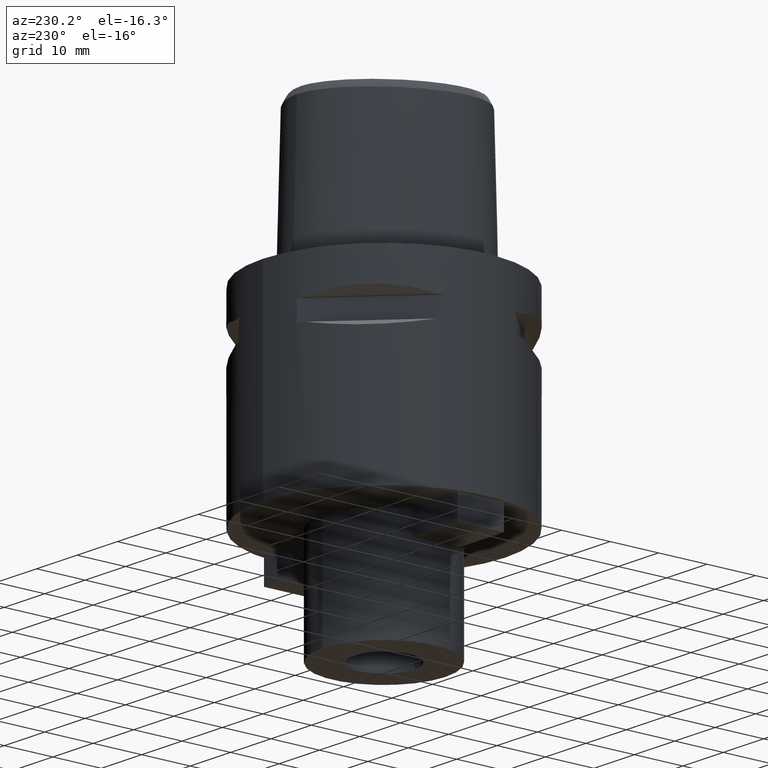
[diagram: clean part render]
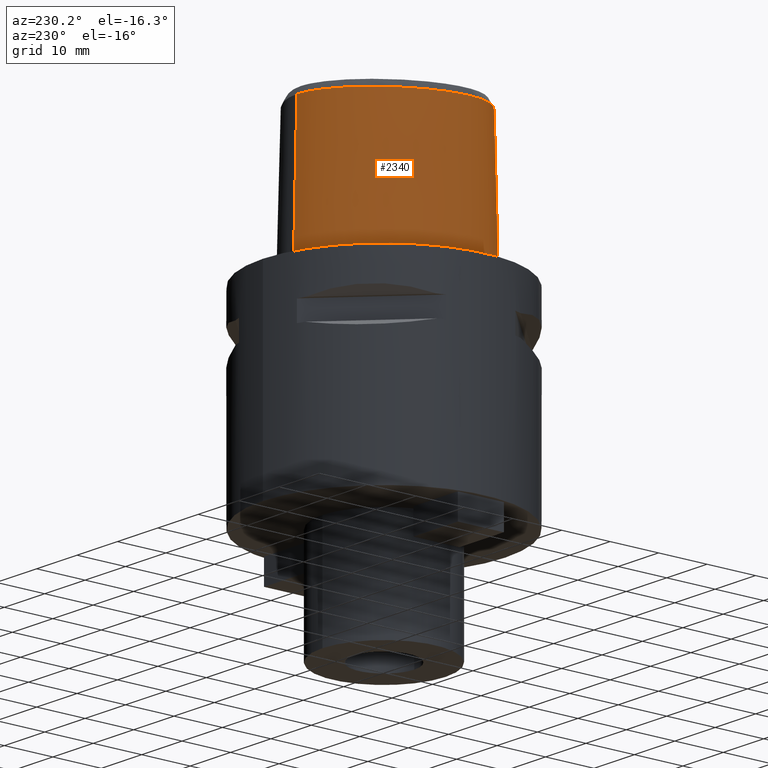
[diagram: same view with one face highlighted and labeled with its STEP entity id]
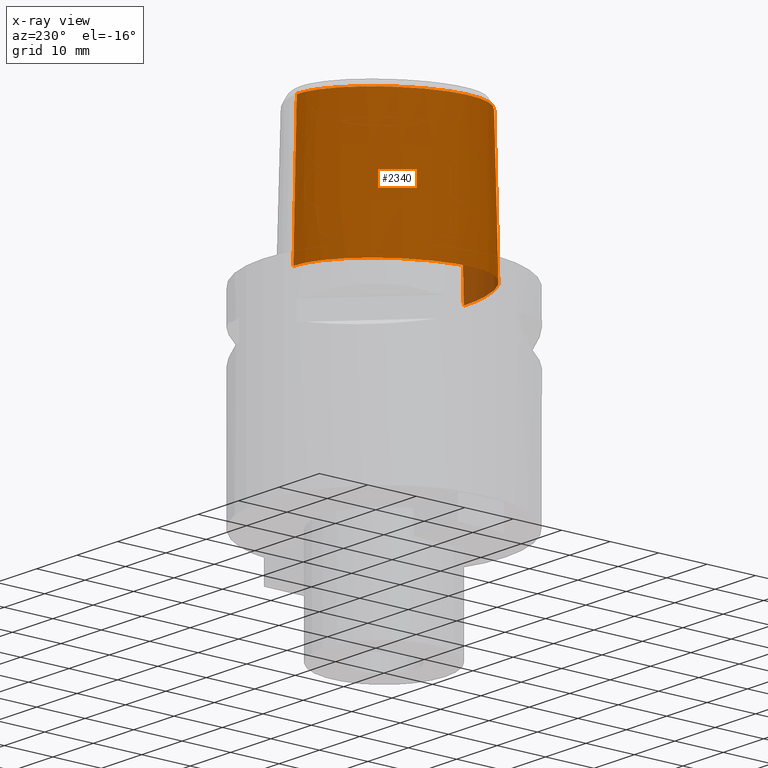
[diagram: x-ray of the same camera — body ghosted, the highlighted face saturated]
A machine part, auxiliary view. The second image highlights one B-rep face of the part: STEP entity #2340.
The next image is the same camera in x-ray: the body ghosted, the highlighted face saturated — about 3% of this face is hidden behind the body in this view.
In plain terms, the highlighted face is a freeform B-spline surface patch.
Its self-contained STEP definition (entity closure, byte-faithful):
#194=CARTESIAN_POINT('',(-3.168920966623E0,-1.555911077539E1,2.852071192347E1));
#195=CARTESIAN_POINT('',(-3.834802460624E0,-1.548149980056E1,2.852068259488E1));
#196=CARTESIAN_POINT('',(-5.098425956189E0,-1.528322129554E1,2.852072501408E1));
#197=CARTESIAN_POINT('',(-6.763182995587E0,-1.489564897571E1,2.852071506774E1));
#198=CARTESIAN_POINT('',(-8.199119874279E0,-1.445421074434E1,2.852072810493E1));
#199=CARTESIAN_POINT('',(-9.479985468784E0,-1.396290448038E1,2.852070886718E1));
#200=CARTESIAN_POINT('',(-1.065124091219E1,-1.341540490560E1,2.852072280462E1));
#201=CARTESIAN_POINT('',(-1.172848667658E1,-1.280901218796E1,2.852071529772E1));
#202=CARTESIAN_POINT('',(-1.271909405023E1,-1.213801322077E1,2.852072140095E1));
#203=CARTESIAN_POINT('',(-1.358663337046E1,-1.142906425604E1,2.852072076692E1));
#204=CARTESIAN_POINT('',(-1.432089152183E1,-1.070578211752E1,2.852072514129E1));
#205=CARTESIAN_POINT('',(-1.493679737650E1,-9.972043940927E0,2.852069036478E1));
#206=CARTESIAN_POINT('',(-1.544989155915E1,-9.225767726928E0,2.852073069360E1));
#207=CARTESIAN_POINT('',(-1.587932340565E1,-8.446243141603E0,2.852072616255E1));
#208=CARTESIAN_POINT('',(-1.624433460780E1,-7.597213457578E0,2.852070981507E1));
#209=CARTESIAN_POINT('',(-1.654527331392E1,-6.658898663135E0,2.852071596628E1));
#210=CARTESIAN_POINT('',(-1.677397756700E1,-5.620521684950E0,2.852072615388E1));
#211=CARTESIAN_POINT('',(-1.691819478479E1,-4.470824263012E0,2.852071639408E1));
#212=CARTESIAN_POINT('',(-1.696344648152E1,-3.257045715356E0,2.852071461131E1));
#213=CARTESIAN_POINT('',(-1.691062909386E1,-2.002801343658E0,2.852072363674E1));
#214=CARTESIAN_POINT('',(-1.675808310329E1,-6.888008413610E-1,
2.852071380688E1));
#215=CARTESIAN_POINT('',(-1.649855299857E1,6.977720721714E-1,2.852071998812E1));
#216=CARTESIAN_POINT('',(-1.610426973207E1,2.225424761353E0,2.852072063483E1));
#217=CARTESIAN_POINT('',(-1.552435244965E1,3.951979169115E0,2.852070441601E1));
#218=CARTESIAN_POINT('',(-1.474396806374E1,5.797556469969E0,2.852072799712E1));
#219=CARTESIAN_POINT('',(-1.380297306136E1,7.624260361627E0,2.852068650932E1));
#220=CARTESIAN_POINT('',(-1.272768153764E1,9.378428865776E0,2.852072747734E1));
#221=CARTESIAN_POINT('',(-1.154002983844E1,1.102437389658E1,2.852071909408E1));
#222=CARTESIAN_POINT('',(-1.032415640403E1,1.246392477114E1,2.852070864766E1));
#223=CARTESIAN_POINT('',(-9.178546848239E0,1.363544536689E1,2.852071992151E1));
#224=CARTESIAN_POINT('',(-8.100503338057E0,1.459779885486E1,2.852071927444E1));
#225=CARTESIAN_POINT('',(-7.037168641851E0,1.542369324304E1,2.852072717459E1));
#226=CARTESIAN_POINT('',(-5.970741987586E0,1.613437390494E1,2.852071577844E1));
#227=CARTESIAN_POINT('',(-4.895546031542E0,1.673553791691E1,2.852072334992E1));
#228=CARTESIAN_POINT('',(-3.827360564547E0,1.721887992541E1,2.852071733764E1));
#229=CARTESIAN_POINT('',(-2.794448666689E0,1.757718790997E1,2.852071374997E1));
#230=CARTESIAN_POINT('',(-1.819188312334E0,1.781665288435E1,2.852077149501E1));
#231=CARTESIAN_POINT('',(-8.849236946526E-1,1.795330503534E1,2.852059165093E1));
#232=CARTESIAN_POINT('',(-2.965007077566E-1,1.798202997910E1,2.852071728568E1));
#233=CARTESIAN_POINT('',(-2.785048470627E-11,1.798202997910E1,
2.852071728569E1));
#245=CARTESIAN_POINT('',(-3.168920966623E0,-1.555911077539E1,2.852071192347E1));
#246=CARTESIAN_POINT('',(-3.176474039100E0,-1.556891666509E1,2.809611645937E1));
#247=CARTESIAN_POINT('',(-3.191280249308E0,-1.558832444513E1,2.724696144168E1));
#248=CARTESIAN_POINT('',(-3.213330813519E0,-1.561778410051E1,2.597339362925E1));
#249=CARTESIAN_POINT('',(-3.227943724850E0,-1.563768160294E1,2.512445079602E1));
#250=CARTESIAN_POINT('',(-3.235096612069E0,-1.564751802487E1,2.47E1));
#255=DIRECTION('',(-2.653059685059E-8,-2.499217453618E-2,-9.996876468237E-1));
#256=VECTOR('',#255,7.652390309446E0);
#257=CARTESIAN_POINT('',(2.030224829794E-7,-1.583752876601E1,2.470000006103E1));
#258=LINE('',#257,#256);
#262=CARTESIAN_POINT('',(0.E0,-1.602877864024E1,1.705E1));
#263=CARTESIAN_POINT('',(-2.659945477311E-1,-1.602877864024E1,1.705E1));
#264=CARTESIAN_POINT('',(-7.981539054071E-1,-1.602276557434E1,
1.697998778210E1));
#265=CARTESIAN_POINT('',(-1.542337742670E0,-1.599859727103E1,1.667189267474E1));
#266=CARTESIAN_POINT('',(-2.182298091953E0,-1.596711682406E1,1.618082016301E1));
#267=CARTESIAN_POINT('',(-2.673120543222E0,-1.593921850387E1,1.554028257757E1));
#268=CARTESIAN_POINT('',(-2.980687782776E0,-1.592573160843E1,1.479556193386E1));
#269=CARTESIAN_POINT('',(-3.084822898489E0,-1.593407648873E1,1.399796112571E1));
#270=CARTESIAN_POINT('',(-2.980017946408E0,-1.596586743653E1,1.320269542640E1));
#271=CARTESIAN_POINT('',(-2.672701220910E0,-1.601665099738E1,1.245917485553E1));
#272=CARTESIAN_POINT('',(-2.182455128889E0,-1.607648409626E1,1.181929354118E1));
#273=CARTESIAN_POINT('',(-1.541258646605E0,-1.613247596370E1,1.132732424473E1));
#274=CARTESIAN_POINT('',(-7.963106898850E-1,-1.617186122197E1,
1.101956686934E1));
#275=CARTESIAN_POINT('',(-2.651805195329E-1,-1.618126839359E1,1.095E1));
#276=CARTESIAN_POINT('',(-3.366053273828E-12,-1.618126839359E1,1.095E1));
#281=DIRECTION('',(-2.164302263116E-12,-2.499051295342E-2,-9.996876883619E-1));
#282=VECTOR('',#281,1.095342088082E1);
#283=CARTESIAN_POINT('',(-3.366053273828E-12,-1.618126839359E1,1.095E1));
#284=LINE('',#283,#282);
#348=CARTESIAN_POINT('',(9.828580115163E-11,1.869499999997E1,
2.298531735316E-13));
#349=CARTESIAN_POINT('',(-3.116838618641E-1,1.869499999997E1,
2.298531735316E-13));
#350=CARTESIAN_POINT('',(-9.476237278125E-1,1.866452055117E1,
-1.066752290805E-13));
#351=CARTESIAN_POINT('',(-1.935937883187E0,1.852100004859E1,
2.858354148453E-14));
#352=CARTESIAN_POINT('',(-2.968629831683E0,1.826986324247E1,0.E0));
#353=CARTESIAN_POINT('',(-4.050261093132E0,1.789825009747E1,0.E0));
#354=CARTESIAN_POINT('',(-5.185110682673E0,1.739030944738E1,0.E0));
#355=CARTESIAN_POINT('',(-6.374204529647E0,1.672795976834E1,0.E0));
#356=CARTESIAN_POINT('',(-7.613915830728E0,1.589256226581E1,0.E0));
#357=CARTESIAN_POINT('',(-8.894283058495E0,1.486729856810E1,0.E0));
#358=CARTESIAN_POINT('',(-1.019609080075E1,1.364208926888E1,0.E0));
#359=CARTESIAN_POINT('',(-1.149120737776E1,1.221752058175E1,0.E0));
#360=CARTESIAN_POINT('',(-1.274211537474E1,1.061080517787E1,0.E0));
#361=CARTESIAN_POINT('',(-1.390590529124E1,8.858677028843E0,0.E0));
#362=CARTESIAN_POINT('',(-1.494345513723E1,7.010577339786E0,0.E0));
#363=CARTESIAN_POINT('',(-1.582654738959E1,5.118799510639E0,0.E0));
#364=CARTESIAN_POINT('',(-1.653483676950E1,3.243969166705E0,0.E0));
#365=CARTESIAN_POINT('',(-1.706324909824E1,1.436857582747E0,0.E0));
#366=CARTESIAN_POINT('',(-1.741926904581E1,-2.668113493154E-1,0.E0));
#367=CARTESIAN_POINT('',(-1.761845088837E1,-1.846907006190E0,0.E0));
#368=CARTESIAN_POINT('',(-1.767988894655E1,-3.295846907527E0,0.E0));
#369=CARTESIAN_POINT('',(-1.762277704993E1,-4.616114521331E0,0.E0));
#370=CARTESIAN_POINT('',(-1.746434613683E1,-5.814649364015E0,0.E0));
#371=CARTESIAN_POINT('',(-1.721845882676E1,-6.903313230626E0,0.E0));
#372=CARTESIAN_POINT('',(-1.689589236557E1,-7.892194644496E0,0.E0));
#373=CARTESIAN_POINT('',(-1.650470801819E1,-8.792166694593E0,0.E0));
#374=CARTESIAN_POINT('',(-1.604223049551E1,-9.625125717610E0,0.E0));
#375=CARTESIAN_POINT('',(-1.549220489588E1,-1.042082857497E1,0.E0));
#376=CARTESIAN_POINT('',(-1.483689873707E1,-1.119906976090E1,0.E0));
#377=CARTESIAN_POINT('',(-1.406041334473E1,-1.196273238812E1,0.E0));
#378=CARTESIAN_POINT('',(-1.315074293952E1,-1.270662661415E1,0.E0));
#379=CARTESIAN_POINT('',(-1.209064300874E1,-1.342637078568E1,0.E0));
#380=CARTESIAN_POINT('',(-1.086441061025E1,-1.411219571951E1,0.E0));
#381=CARTESIAN_POINT('',(-9.458902560865E0,-1.475009149371E1,0.E0));
#382=CARTESIAN_POINT('',(-7.867598179330E0,-1.532133665618E1,0.E0));
#383=CARTESIAN_POINT('',(-6.095187664965E0,-1.580314672466E1,0.E0));
#384=CARTESIAN_POINT('',(-4.164011735992E0,-1.617109882954E1,
2.874001232828E-14));
#385=CARTESIAN_POINT('',(-2.108829770643E0,-1.640239423805E1,
-1.072591862193E-13));
#386=CARTESIAN_POINT('',(-7.106539797939E-1,-1.645499999999E1,
2.311114262928E-13));
#387=CARTESIAN_POINT('',(-2.707256687504E-11,-1.645499999999E1,
2.311114262928E-13));
#915=DIRECTION('',(4.421238455017E-12,2.499051285762E-2,-9.996876883643E-1));
#916=VECTOR('',#915,2.852962742029E1);
#917=CARTESIAN_POINT('',(-2.785048470627E-11,1.798202997910E1,
2.852071728569E1));
#918=LINE('',#917,#916);
#932=CARTESIAN_POINT('',(2.030224829794E-7,-1.583752876601E1,2.470000006103E1));
#933=CARTESIAN_POINT('',(-3.604657533404E-1,-1.583752876587E1,
2.470000006103E1));
#934=CARTESIAN_POINT('',(-1.080736565087E0,-1.582371258234E1,2.469999997152E1));
#935=CARTESIAN_POINT('',(-2.160152508818E0,-1.576019554973E1,2.470000000814E1));
#936=CARTESIAN_POINT('',(-2.877122210813E0,-1.568999562894E1,2.47E1));
#937=CARTESIAN_POINT('',(-3.235096612069E0,-1.564751802487E1,2.47E1));
#1553=CARTESIAN_POINT('',(-3.235121119989E0,-1.564755630482E1,2.47E1));
#1554=VERTEX_POINT('',#1553);
#1555=VERTEX_POINT('',#245);
#1556=CARTESIAN_POINT('',(-2.785048470627E-11,1.798202997910E1,
2.852071728569E1));
#1557=VERTEX_POINT('',#1556);
#1558=VERTEX_POINT('',#348);
#1559=VERTEX_POINT('',#387);
#1560=VERTEX_POINT('',#932);
#1561=CARTESIAN_POINT('',(0.E0,-1.602877864024E1,1.705E1));
#1562=VERTEX_POINT('',#1561);
#1563=VERTEX_POINT('',#276);
#2227=CARTESIAN_POINT('',(5.756361492360E-1,1.869183960126E1,
-5.704147440527E-1));
#2228=CARTESIAN_POINT('',(5.606135736536E-1,1.844514039508E1,9.316774152861E0));
#2229=CARTESIAN_POINT('',(5.455909980712E-1,1.819844118889E1,1.920396304977E1));
#2230=CARTESIAN_POINT('',(5.305684224888E-1,1.795174198271E1,2.909115194669E1));
#2231=CARTESIAN_POINT('',(3.838142946961E-1,1.870350312631E1,
-5.704147440527E-1));
#2232=CARTESIAN_POINT('',(3.738602549073E-1,1.845648974247E1,9.316774152861E0));
#2233=CARTESIAN_POINT('',(3.639062151184E-1,1.820947635862E1,1.920396304977E1));
#2234=CARTESIAN_POINT('',(3.539521753296E-1,1.796246297477E1,2.909115194669E1));
#2235=CARTESIAN_POINT('',(-4.893119564130E-1,1.872969240899E1,
-5.704147440527E-1));
#2236=CARTESIAN_POINT('',(-4.764647998590E-1,1.848199779945E1,
9.316774152861E0));
#2237=CARTESIAN_POINT('',(-4.636176433049E-1,1.823430318991E1,
1.920396304977E1));
#2238=CARTESIAN_POINT('',(-4.507704867509E-1,1.798660858037E1,
2.909115194669E1));
#2239=CARTESIAN_POINT('',(-2.043508293299E0,1.856419797101E1,
-5.704147440527E-1));
#2240=CARTESIAN_POINT('',(-1.992618742337E0,1.832080814009E1,9.316774152861E0));
#2241=CARTESIAN_POINT('',(-1.941729191376E0,1.807741830917E1,1.920396304977E1));
#2242=CARTESIAN_POINT('',(-1.890839640414E0,1.783402847824E1,2.909115194669E1));
#2243=CARTESIAN_POINT('',(-4.735056265137E0,1.774784408039E1,
-5.704147440527E-1));
#2244=CARTESIAN_POINT('',(-4.628819254237E0,1.752182793697E1,9.316774152861E0));
#2245=CARTESIAN_POINT('',(-4.522582243338E0,1.729581179356E1,1.920396304977E1));
#2246=CARTESIAN_POINT('',(-4.416345232438E0,1.706979565014E1,2.909115194669E1));
#2247=CARTESIAN_POINT('',(-7.976721802350E0,1.584201698702E1,
-5.704147440527E-1));
#2248=CARTESIAN_POINT('',(-7.822764741513E0,1.564591004524E1,9.316774152861E0));
#2249=CARTESIAN_POINT('',(-7.668807680676E0,1.544980310346E1,1.920396304977E1));
#2250=CARTESIAN_POINT('',(-7.514850619839E0,1.525369616167E1,2.909115194669E1));
#2251=CARTESIAN_POINT('',(-1.147659488594E1,1.246143684925E1,
-5.704147440527E-1));
#2252=CARTESIAN_POINT('',(-1.128662492027E1,1.230111479561E1,9.316774152861E0));
#2253=CARTESIAN_POINT('',(-1.109665495460E1,1.214079274197E1,1.920396304977E1));
#2254=CARTESIAN_POINT('',(-1.090668498893E1,1.198047068833E1,2.909115194669E1));
#2255=CARTESIAN_POINT('',(-1.439249255323E1,8.309508949289E0,
-5.704147440527E-1));
#2256=CARTESIAN_POINT('',(-1.417736237687E1,8.185312161597E0,9.316774152861E0));
#2257=CARTESIAN_POINT('',(-1.396223220052E1,8.061115373904E0,1.920396304977E1));
#2258=CARTESIAN_POINT('',(-1.374710202416E1,7.936918586211E0,2.909115194669E1));
#2259=CARTESIAN_POINT('',(-1.653021708683E1,3.708305584883E0,
-5.704147440527E-1));
#2260=CARTESIAN_POINT('',(-1.629641054366E1,3.623925446918E0,9.316774152861E0));
#2261=CARTESIAN_POINT('',(-1.606260400049E1,3.539545308954E0,1.920396304977E1));
#2262=CARTESIAN_POINT('',(-1.582879745731E1,3.455165170990E0,2.909115194669E1));
#2263=CARTESIAN_POINT('',(-1.751166498659E1,-2.260900526659E-1,
-5.704147440527E-1));
#2264=CARTESIAN_POINT('',(-1.726695535231E1,-2.694874731237E-1,
9.316774152861E0));
#2265=CARTESIAN_POINT('',(-1.702224571802E1,-3.128848935814E-1,
1.920396304977E1));
#2266=CARTESIAN_POINT('',(-1.677753608374E1,-3.562823140392E-1,
2.909115194669E1));
#2267=CARTESIAN_POINT('',(-1.772574106129E1,-3.269125760287E0,
-5.704147440527E-1));
#2268=CARTESIAN_POINT('',(-1.747781016288E1,-3.270737581987E0,
9.316774152861E0));
#2269=CARTESIAN_POINT('',(-1.722987926447E1,-3.272349403687E0,
1.920396304977E1));
#2270=CARTESIAN_POINT('',(-1.698194836605E1,-3.273961225387E0,
2.909115194669E1));
#2271=CARTESIAN_POINT('',(-1.757791639833E1,-5.458025466072E0,
-5.704147440527E-1));
#2272=CARTESIAN_POINT('',(-1.733218226900E1,-5.422849679150E0,
9.316774152861E0));
#2273=CARTESIAN_POINT('',(-1.708644813966E1,-5.387673892228E0,
1.920396304977E1));
#2274=CARTESIAN_POINT('',(-1.684071401033E1,-5.352498105306E0,
2.909115194669E1));
#2275=CARTESIAN_POINT('',(-1.717866843041E1,-7.169980044939E0,
-5.704147440527E-1));
#2276=CARTESIAN_POINT('',(-1.694089127862E1,-7.099401453497E0,
9.316774152861E0));
#2277=CARTESIAN_POINT('',(-1.670311412682E1,-7.028822862055E0,
1.920396304977E1));
#2278=CARTESIAN_POINT('',(-1.646533697503E1,-6.958244270614E0,
2.909115194669E1));
#2279=CARTESIAN_POINT('',(-1.668217932229E1,-8.451606617198E0,
-5.704147440527E-1));
#2280=CARTESIAN_POINT('',(-1.645596370678E1,-8.350972127447E0,
9.316774152861E0));
#2281=CARTESIAN_POINT('',(-1.622974809127E1,-8.250337637696E0,
1.920396304977E1));
#2282=CARTESIAN_POINT('',(-1.600353247576E1,-8.149703147945E0,
2.909115194669E1));
#2283=CARTESIAN_POINT('',(-1.621839714893E1,-9.363695959775E0,
-5.704147440527E-1));
#2284=CARTESIAN_POINT('',(-1.600394170793E1,-9.239880052826E0,
9.316774152861E0));
#2285=CARTESIAN_POINT('',(-1.578948626693E1,-9.116064145877E0,
1.920396304977E1));
#2286=CARTESIAN_POINT('',(-1.557503082594E1,-8.992248238928E0,
2.909115194669E1));
#2287=CARTESIAN_POINT('',(-1.566039569456E1,-1.022138777499E1,
-5.704147440527E-1));
#2288=CARTESIAN_POINT('',(-1.546013585980E1,-1.007579655016E1,
9.316774152861E0));
#2289=CARTESIAN_POINT('',(-1.525987602503E1,-9.930205325332E0,
1.920396304977E1));
#2290=CARTESIAN_POINT('',(-1.505961619026E1,-9.784614100504E0,
2.909115194669E1));
#2291=CARTESIAN_POINT('',(-1.479871907799E1,-1.129217324143E1,
-5.704147440527E-1));
#2292=CARTESIAN_POINT('',(-1.461870766210E1,-1.112154148364E1,
9.316774152861E0));
#2293=CARTESIAN_POINT('',(-1.443869624621E1,-1.095090972585E1,
1.920396304977E1));
#2294=CARTESIAN_POINT('',(-1.425868483032E1,-1.078027796806E1,
2.909115194669E1));
#2295=CARTESIAN_POINT('',(-1.351574691343E1,-1.249390941373E1,
-5.704147440527E-1));
#2296=CARTESIAN_POINT('',(-1.336241661724E1,-1.229868530490E1,
9.316774152861E0));
#2297=CARTESIAN_POINT('',(-1.320908632106E1,-1.210346119606E1,
1.920396304977E1));
#2298=CARTESIAN_POINT('',(-1.305575602488E1,-1.190823708722E1,
2.909115194669E1));
#2299=CARTESIAN_POINT('',(-1.169401646480E1,-1.371637917906E1,
-5.704147440527E-1));
#2300=CARTESIAN_POINT('',(-1.157144728282E1,-1.350085882547E1,
9.316774152861E0));
#2301=CARTESIAN_POINT('',(-1.144887810085E1,-1.328533847189E1,
1.920396304977E1));
#2302=CARTESIAN_POINT('',(-1.132630891888E1,-1.306981811831E1,
2.909115194669E1));
#2303=CARTESIAN_POINT('',(-8.951632341334E0,-1.505250171881E1,
-5.704147440527E-1));
#2304=CARTESIAN_POINT('',(-8.866858732090E0,-1.481887817618E1,
9.316774152861E0));
#2305=CARTESIAN_POINT('',(-8.782085122847E0,-1.458525463356E1,
1.920396304977E1));
#2306=CARTESIAN_POINT('',(-8.697311513603E0,-1.435163109094E1,
2.909115194669E1));
#2307=CARTESIAN_POINT('',(-5.053620744068E0,-1.616974068598E1,
-5.704147440527E-1));
#2308=CARTESIAN_POINT('',(-5.009809418143E0,-1.592506879562E1,
9.316774152861E0));
#2309=CARTESIAN_POINT('',(-4.965998092217E0,-1.568039690525E1,
1.920396304977E1));
#2310=CARTESIAN_POINT('',(-4.922186766292E0,-1.543572501489E1,
2.909115194669E1));
#2311=CARTESIAN_POINT('',(-1.321318947119E0,-1.650155084733E1,
-5.704147440527E-1));
#2312=CARTESIAN_POINT('',(-1.309813751055E0,-1.625411915168E1,
9.316774152861E0));
#2313=CARTESIAN_POINT('',(-1.298308554992E0,-1.600668745603E1,
1.920396304977E1));
#2314=CARTESIAN_POINT('',(-1.286803358928E0,-1.575925576039E1,
2.909115194669E1));
#2315=CARTESIAN_POINT('',(7.264497205771E-1,-1.646229666112E1,
-5.704147440527E-1));
#2316=CARTESIAN_POINT('',(7.201291701075E-1,-1.621519145912E1,
9.316774152861E0));
#2317=CARTESIAN_POINT('',(7.138086196379E-1,-1.596808625712E1,
1.920396304977E1));
#2318=CARTESIAN_POINT('',(7.074880691683E-1,-1.572098105512E1,
2.909115194669E1));
#2319=CARTESIAN_POINT('',(1.089046662319E0,-1.644835922032E1,
-5.704147440527E-1));
#2320=CARTESIAN_POINT('',(1.079551360405E0,-1.620136642156E1,9.316774152861E0));
#2321=CARTESIAN_POINT('',(1.070056058492E0,-1.595437362280E1,1.920396304977E1));
#2322=CARTESIAN_POINT('',(1.060560756579E0,-1.570738082404E1,2.909115194669E1));
#2323=B_SPLINE_SURFACE_WITH_KNOTS('',3,3,((#2227,#2228,#2229,#2230),(#2231,
#2232,#2233,#2234),(#2235,#2236,#2237,#2238),(#2239,#2240,#2241,#2242),(#2243,
#2244,#2245,#2246),(#2247,#2248,#2249,#2250),(#2251,#2252,#2253,#2254),(#2255,
#2256,#2257,#2258),(#2259,#2260,#2261,#2262),(#2263,#2264,#2265,#2266),(#2267,
#2268,#2269,#2270),(#2271,#2272,#2273,#2274),(#2275,#2276,#2277,#2278),(#2279,
#2280,#2281,#2282),(#2283,#2284,#2285,#2286),(#2287,#2288,#2289,#2290),(#2291,
#2292,#2293,#2294),(#2295,#2296,#2297,#2298),(#2299,#2300,#2301,#2302),(#2303,
#2304,#2305,#2306),(#2307,#2308,#2309,#2310),(#2311,#2312,#2313,#2314),(#2315,
#2316,#2317,#2318),(#2319,#2320,#2321,#2322)),.UNSPECIFIED.,.F.,.F.,.F.,(4,1,1,
1,1,1,1,1,1,1,1,1,1,1,1,1,1,1,1,1,1,4),(4,4),(-1.173812893916E-2,0.E0,
4.166666666860E-2,8.333333333518E-2,1.666666666684E-1,2.500000000015E-1,
3.333333333347E-1,4.166666666679E-1,5.000000000010E-1,5.416666666677E-1,
5.833333333342E-1,6.250000000008E-1,6.458333333341E-1,6.666666666674E-1,
6.875000000007E-1,7.083333333339E-1,7.500000000006E-1,7.916666666672E-1,
8.333333333337E-1,9.166666666669E-1,1.E0,1.017968513185E0),(-4.153185781397E-11,
1.000000002118E0),.UNSPECIFIED.);
#2325=ORIENTED_EDGE('',*,*,#2324,.F.);
#2327=ORIENTED_EDGE('',*,*,#2326,.F.);
#2328=ORIENTED_EDGE('',*,*,#2220,.F.);
#2329=ORIENTED_EDGE('',*,*,#1753,.T.);
#2331=ORIENTED_EDGE('',*,*,#2330,.F.);
#2333=ORIENTED_EDGE('',*,*,#2332,.T.);
#2335=ORIENTED_EDGE('',*,*,#2334,.T.);
#2337=ORIENTED_EDGE('',*,*,#2336,.T.);
#2338=EDGE_LOOP('',(#2325,#2327,#2328,#2329,#2331,#2333,#2335,#2337));
#2339=FACE_OUTER_BOUND('',#2338,.F.);
#234=B_SPLINE_CURVE_WITH_KNOTS('',3,(#194,#195,#196,#197,#198,#199,#200,#201,
#202,#203,#204,#205,#206,#207,#208,#209,#210,#211,#212,#213,#214,#215,#216,#217,
#218,#219,#220,#221,#222,#223,#224,#225,#226,#227,#228,#229,#230,#231,#232,
#233),.UNSPECIFIED.,.F.,.F.,(4,1,1,1,1,1,1,1,1,1,1,1,1,1,1,1,1,1,1,1,1,1,1,1,1,
1,1,1,1,1,1,1,1,1,1,1,1,4),(0.E0,2.702702702703E-2,5.405405405405E-2,
8.108108108108E-2,1.081081081081E-1,1.351351351351E-1,1.621621621622E-1,
1.891891891892E-1,2.162162162162E-1,2.432432432432E-1,2.702702702703E-1,
2.972972972973E-1,3.243243243243E-1,3.513513513514E-1,3.783783783784E-1,
4.054054054054E-1,4.324324324324E-1,4.594594594595E-1,4.864864864865E-1,
5.135135135135E-1,5.405405405405E-1,5.675675675676E-1,5.945945945946E-1,
6.216216216216E-1,6.486486486486E-1,6.756756756757E-1,7.027027027027E-1,
7.297297297297E-1,7.567567567568E-1,7.837837837838E-1,8.108108108108E-1,
8.378378378378E-1,8.648648648649E-1,8.918918918919E-1,9.189189189189E-1,
9.459459459459E-1,9.729729729730E-1,1.E0),.UNSPECIFIED.);
#251=B_SPLINE_CURVE_WITH_KNOTS('',3,(#245,#246,#247,#248,#249,#250),
.UNSPECIFIED.,.F.,.F.,(4,1,1,4),(0.E0,3.333333333333E-1,6.666666666667E-1,1.E0),
.UNSPECIFIED.);
#277=B_SPLINE_CURVE_WITH_KNOTS('',3,(#262,#263,#264,#265,#266,#267,#268,#269,
#270,#271,#272,#273,#274,#275,#276),.UNSPECIFIED.,.F.,.F.,(4,1,1,1,1,1,1,1,1,1,
1,1,4),(0.E0,8.333333333333E-2,1.666666666667E-1,2.5E-1,3.333333333333E-1,
4.166666666667E-1,5.E-1,5.833333333333E-1,6.666666666667E-1,7.5E-1,
8.333333333333E-1,9.166666666667E-1,1.E0),.UNSPECIFIED.);
#388=B_SPLINE_CURVE_WITH_KNOTS('',3,(#348,#349,#350,#351,#352,#353,#354,#355,
#356,#357,#358,#359,#360,#361,#362,#363,#364,#365,#366,#367,#368,#369,#370,#371,
#372,#373,#374,#375,#376,#377,#378,#379,#380,#381,#382,#383,#384,#385,#386,
#387),.UNSPECIFIED.,.F.,.F.,(4,1,1,1,1,1,1,1,1,1,1,1,1,1,1,1,1,1,1,1,1,1,1,1,1,
1,1,1,1,1,1,1,1,1,1,1,1,4),(0.E0,2.702702702703E-2,5.405405405405E-2,
8.108108108108E-2,1.081081081081E-1,1.351351351351E-1,1.621621621622E-1,
1.891891891892E-1,2.162162162162E-1,2.432432432432E-1,2.702702702703E-1,
2.972972972973E-1,3.243243243243E-1,3.513513513514E-1,3.783783783784E-1,
4.054054054054E-1,4.324324324324E-1,4.594594594595E-1,4.864864864865E-1,
5.135135135135E-1,5.405405405405E-1,5.675675675676E-1,5.945945945946E-1,
6.216216216216E-1,6.486486486486E-1,6.756756756757E-1,7.027027027027E-1,
7.297297297297E-1,7.567567567568E-1,7.837837837838E-1,8.108108108108E-1,
8.378378378378E-1,8.648648648649E-1,8.918918918919E-1,9.189189189189E-1,
9.459459459459E-1,9.729729729730E-1,1.E0),.UNSPECIFIED.);
#938=B_SPLINE_CURVE_WITH_KNOTS('',3,(#932,#933,#934,#935,#936,#937),
.UNSPECIFIED.,.F.,.F.,(4,1,1,4),(0.E0,3.333333333333E-1,6.666666666667E-1,1.E0),
.UNSPECIFIED.);
#1753=EDGE_CURVE('',#1555,#1554,#251,.T.);
#2220=EDGE_CURVE('',#1555,#1557,#234,.T.);
#2324=EDGE_CURVE('',#1558,#1559,#388,.T.);
#2326=EDGE_CURVE('',#1557,#1558,#918,.T.);
#2330=EDGE_CURVE('',#1560,#1554,#938,.T.);
#2332=EDGE_CURVE('',#1560,#1562,#258,.T.);
#2334=EDGE_CURVE('',#1562,#1563,#277,.T.);
#2336=EDGE_CURVE('',#1563,#1559,#284,.T.);
#2340=ADVANCED_FACE('',(#2339),#2323,.T.);